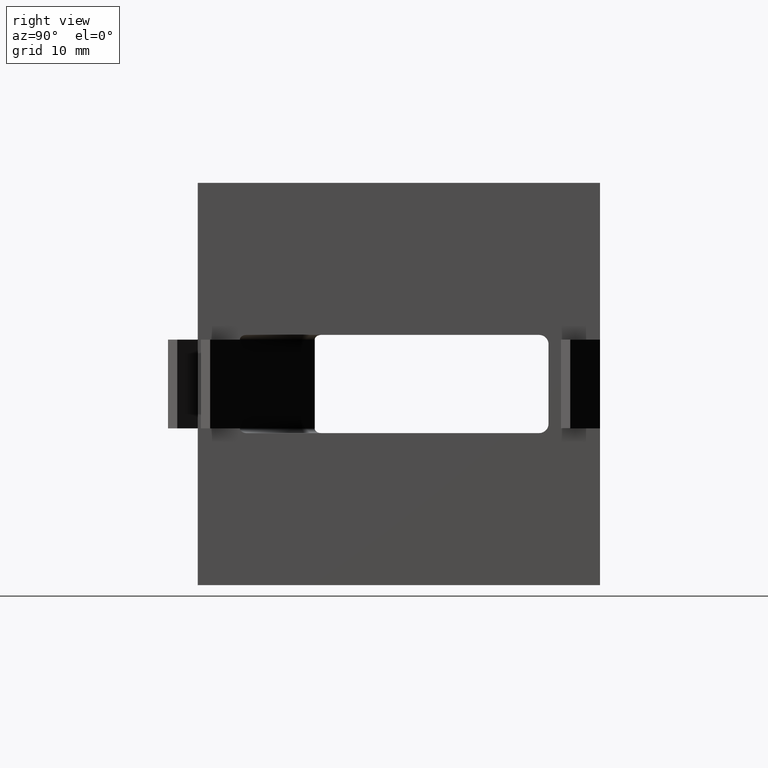
[diagram: clean part render]
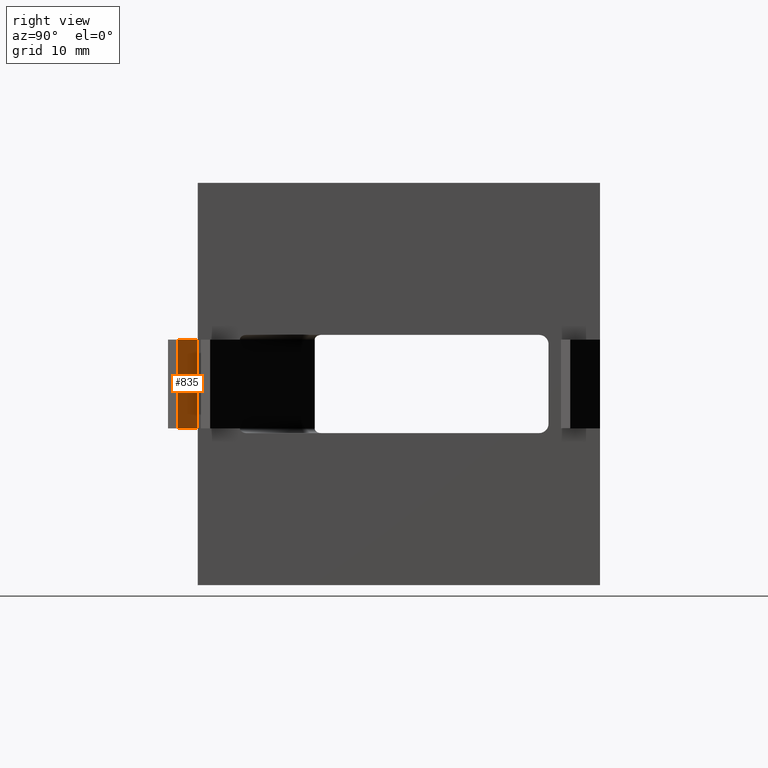
[diagram: same view with one face highlighted and labeled with its STEP entity id]
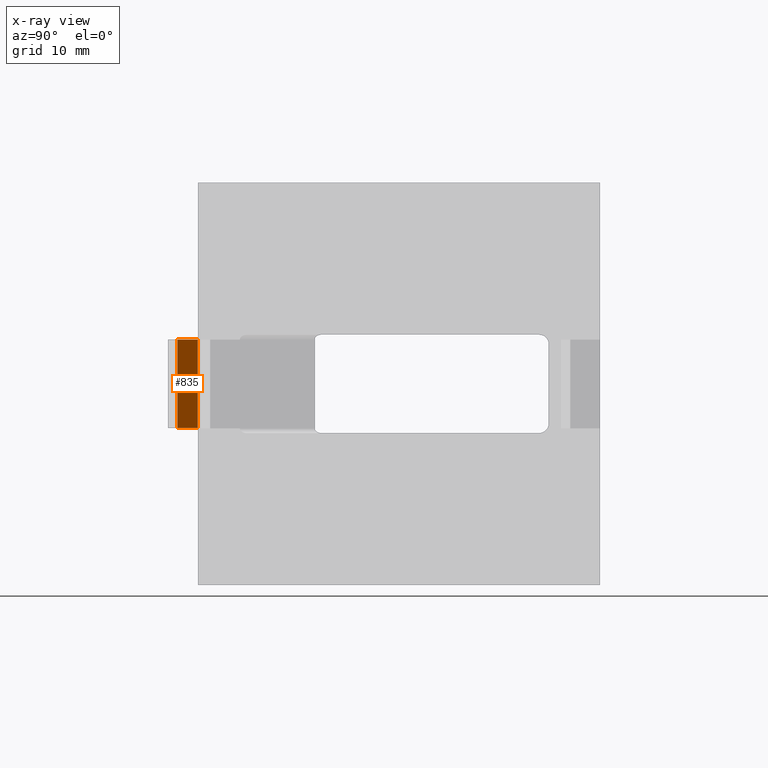
[diagram: x-ray of the same camera — body ghosted, the highlighted face saturated]
A machine part, right view. The second image highlights one B-rep face of the part: STEP entity #835.
The next image is the same camera in x-ray: the body ghosted, the highlighted face saturated — about 0% of this face is hidden behind the body in this view.
In plain terms, the highlighted planar face has unit normal (0.8192, 0.5736, 0).
Its self-contained STEP definition (entity closure, byte-faithful):
#37=PLANE('',#891);
#79=FACE_OUTER_BOUND('',#125,.T.);
#125=EDGE_LOOP('',(#633,#634,#635,#636));
#196=LINE('',#1253,#300);
#198=LINE('',#1257,#302);
#199=LINE('',#1259,#303);
#200=LINE('',#1260,#304);
#300=VECTOR('',#1012,2.67597576904167);
#302=VECTOR('',#1016,9.5);
#303=VECTOR('',#1017,2.67597576904167);
#304=VECTOR('',#1018,9.5);
#409=VERTEX_POINT('',#1250);
#410=VERTEX_POINT('',#1252);
#411=VERTEX_POINT('',#1256);
#412=VERTEX_POINT('',#1258);
#496=EDGE_CURVE('',#409,#410,#196,.T.);
#498=EDGE_CURVE('',#411,#409,#198,.T.);
#499=EDGE_CURVE('',#412,#411,#199,.T.);
#500=EDGE_CURVE('',#410,#412,#200,.T.);
#633=ORIENTED_EDGE('',*,*,#498,.F.);
#634=ORIENTED_EDGE('',*,*,#499,.F.);
#635=ORIENTED_EDGE('',*,*,#500,.F.);
#636=ORIENTED_EDGE('',*,*,#496,.F.);
#835=ADVANCED_FACE('',(#79),#37,.T.);
#891=AXIS2_PLACEMENT_3D('',#1255,#1014,#1015);
#1012=DIRECTION('',(0.573576436351045,-0.819152044288992,0.));
#1014=DIRECTION('center_axis',(0.819152044288993,0.573576436351045,0.));
#1015=DIRECTION('ref_axis',(-0.573576436351045,0.819152044288993,0.));
#1016=DIRECTION('',(0.,0.,-1.));
#1017=DIRECTION('',(-0.573576436351045,0.819152044288992,0.));
#1018=DIRECTION('',(0.,0.,1.));
#1250=CARTESIAN_POINT('',(19.637053363632,-21.5,-4.75));
#1252=CARTESIAN_POINT('',(21.1719300090006,-23.6920310216783,-4.75));
#1253=CARTESIAN_POINT('',(21.1719300090006,-23.6920310216783,-4.75));
#1255=CARTESIAN_POINT('Origin',(21.1719300090006,-23.6920310216783,0.));
#1256=CARTESIAN_POINT('',(19.637053363632,-21.5,4.75));
#1257=CARTESIAN_POINT('',(19.637053363632,-21.5,0.));
#1258=CARTESIAN_POINT('',(21.1719300090006,-23.6920310216783,4.75));
#1259=CARTESIAN_POINT('',(21.1719300090006,-23.6920310216783,4.75));
#1260=CARTESIAN_POINT('',(21.1719300090006,-23.6920310216783,0.));